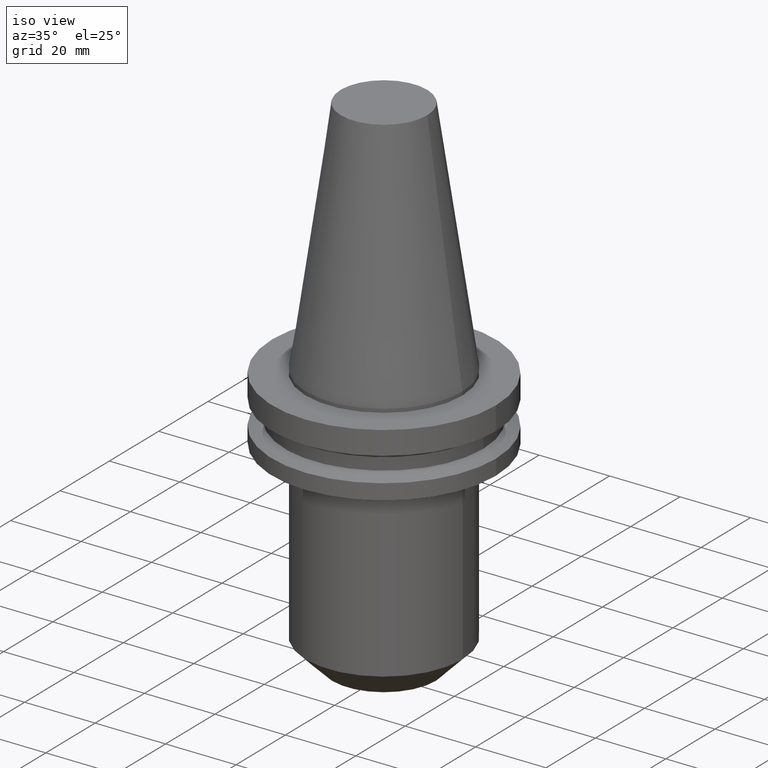
[diagram: clean part render]
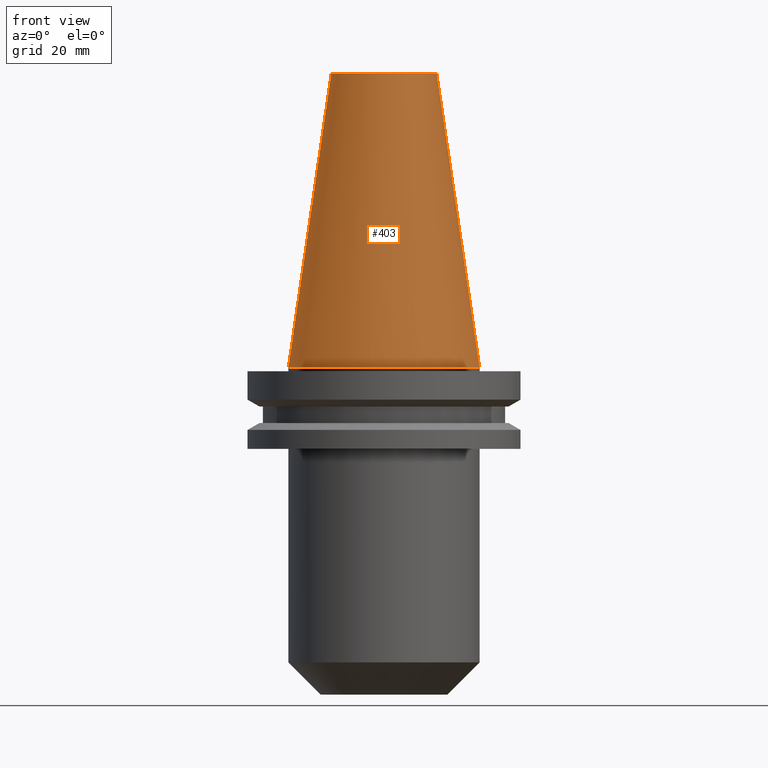
[diagram: tour spotlight — one face highlighted and labeled with its STEP entity id]
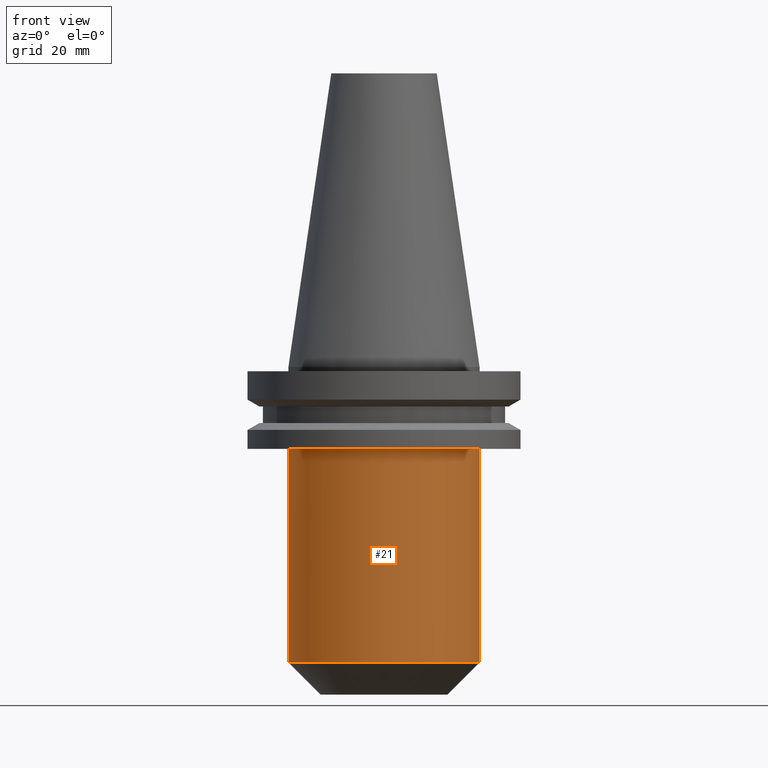
[diagram: tour spotlight — one face highlighted and labeled with its STEP entity id]
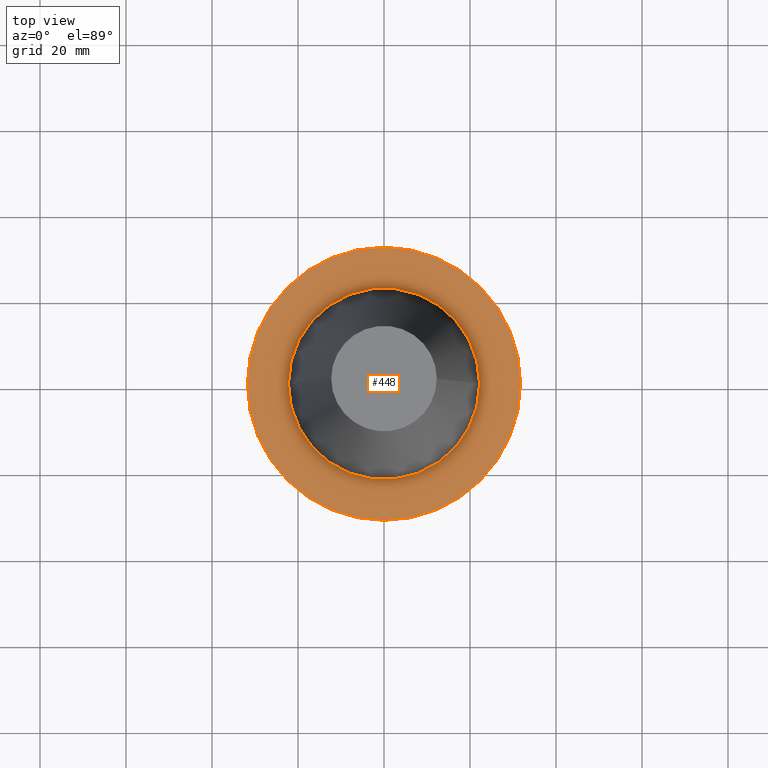
[diagram: tour spotlight — one face highlighted and labeled with its STEP entity id]
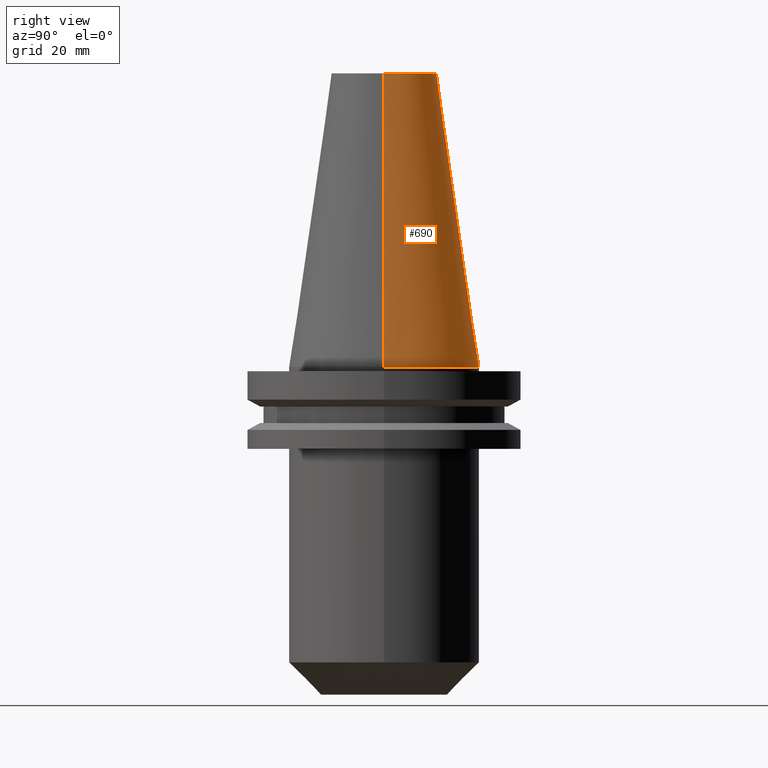
[diagram: tour spotlight — one face highlighted and labeled with its STEP entity id]
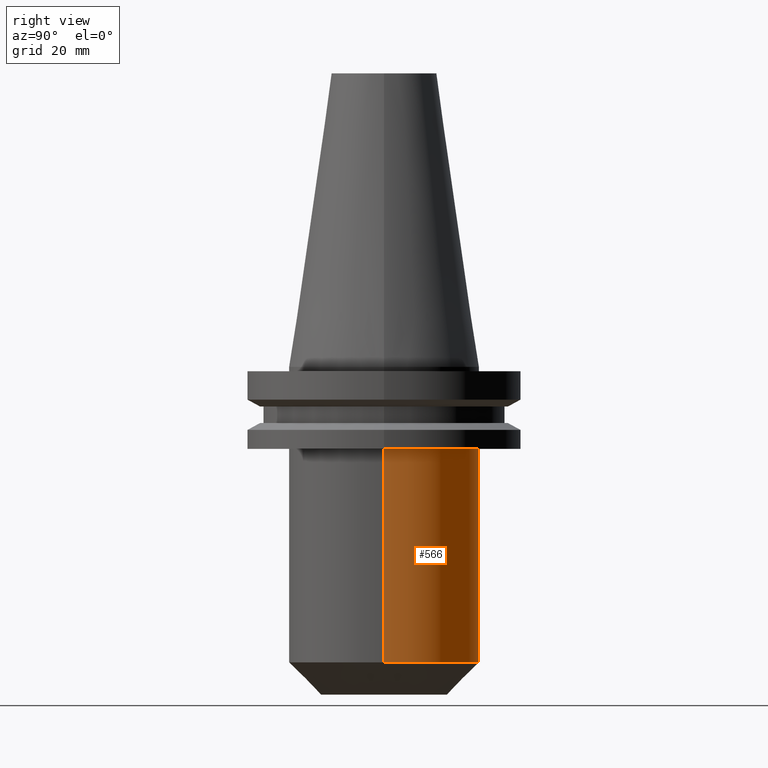
[diagram: tour spotlight — one face highlighted and labeled with its STEP entity id]
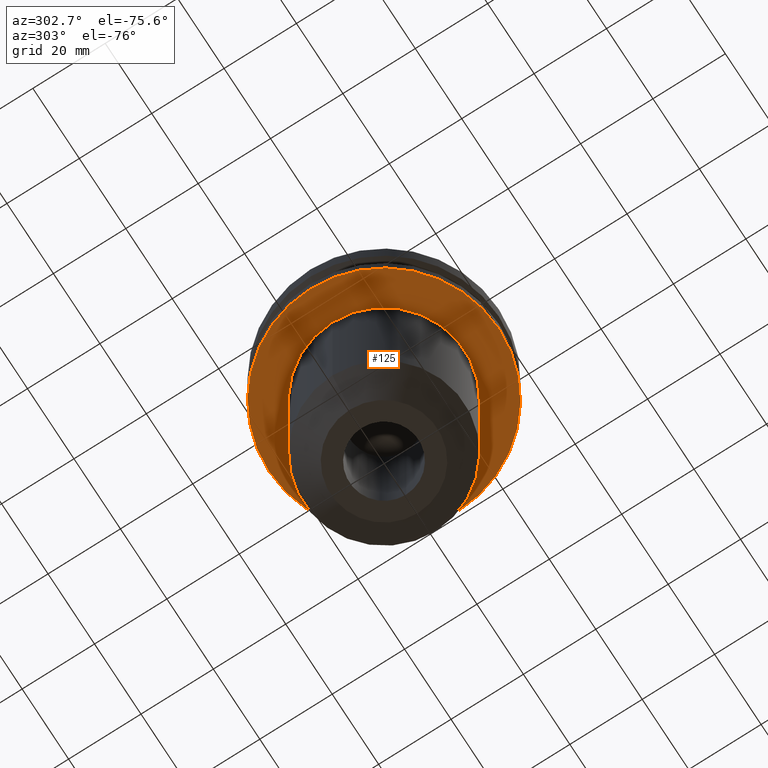
[diagram: tour spotlight — one face highlighted and labeled with its STEP entity id]
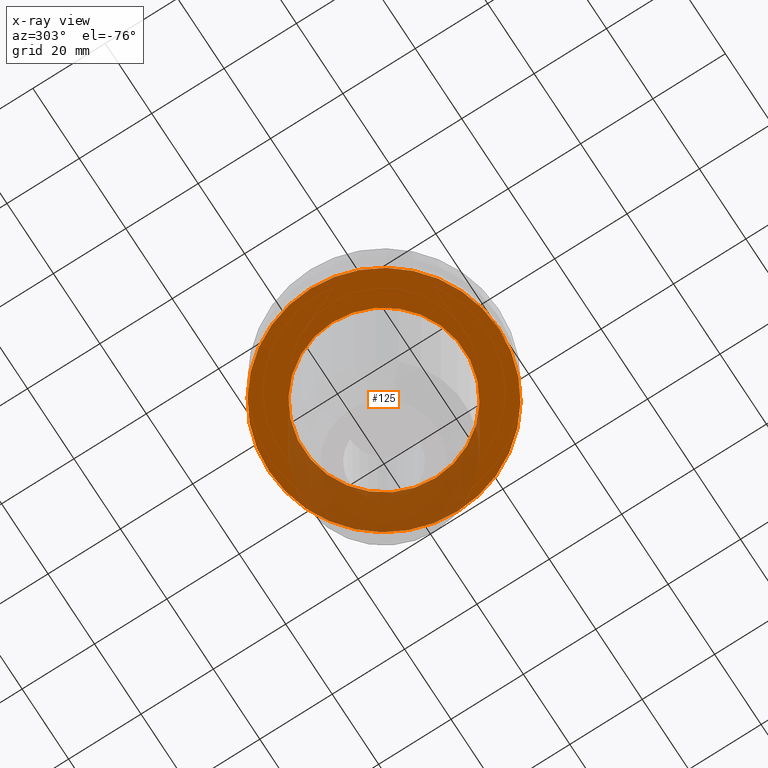
[diagram: x-ray of the same camera — body ghosted, this tour face saturated]
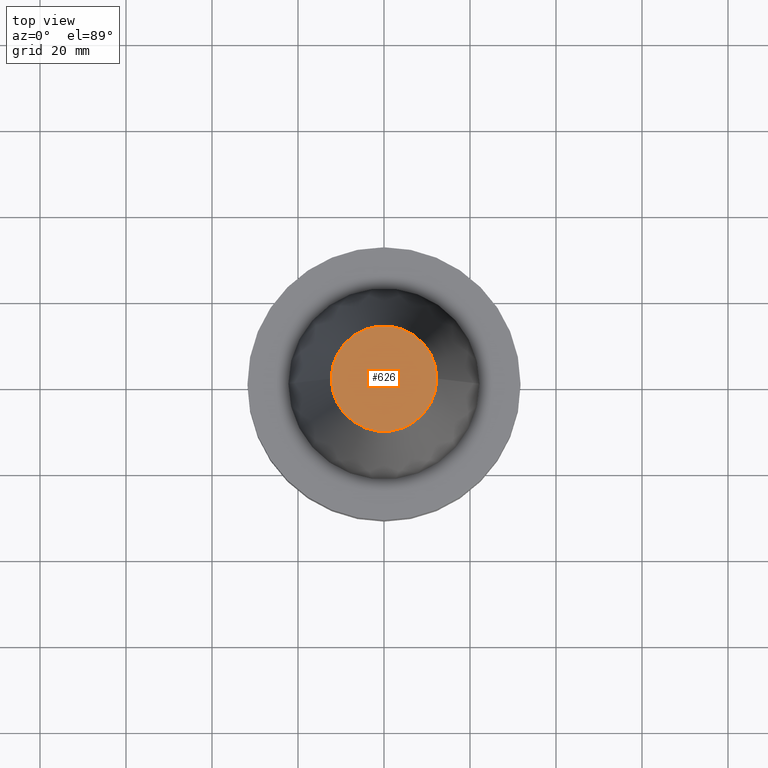
[diagram: tour spotlight — one face highlighted and labeled with its STEP entity id]
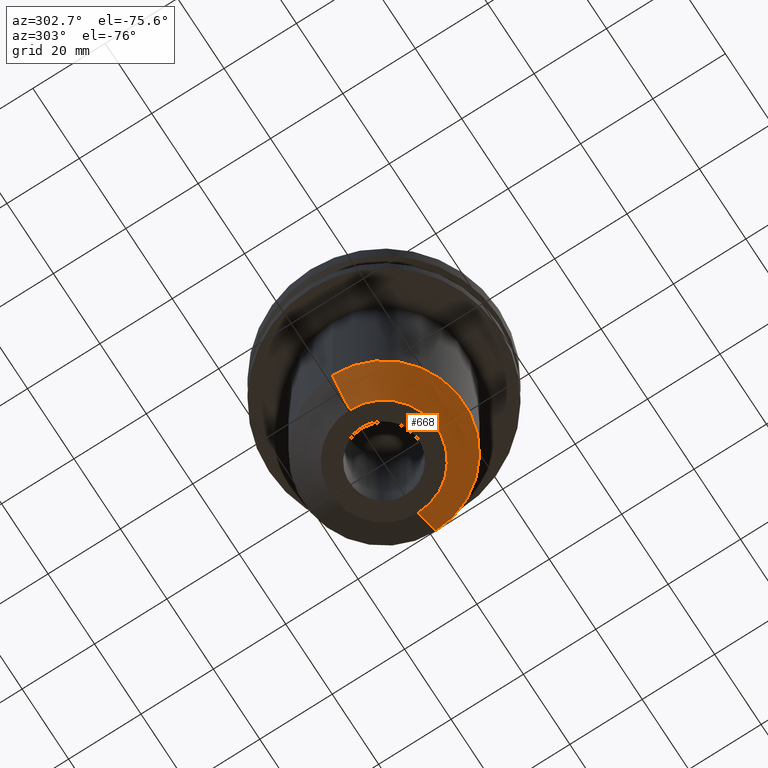
[diagram: tour spotlight — one face highlighted and labeled with its STEP entity id]
A machine part: a face-by-face anatomy tour. The part has 27 B-rep faces; the first image is the clean iso view, then the 8 largest visible faces are spotlighted one at a time (largest first), each with its STEP entity span.

Face 1 — front view, entity #403. In plain terms, the highlighted conical surface has half-angle 8.297 deg.
Definition (entity closure, byte-faithful):
#8 = VECTOR ( 'NONE', #361, 999.9999999999998863 ) ;
#9 = CARTESIAN_POINT ( 'NONE',  ( 0.000000000000000000, 0.000000000000000000, 68.25000000000000000 ) ) ;
#30 = EDGE_CURVE ( 'NONE', #718, #769, #304, .T. ) ;
#49 = DIRECTION ( 'NONE',  ( 0.000000000000000000, 0.000000000000000000, -1.000000000000000000 ) ) ;
#66 = VERTEX_POINT ( 'NONE', #443 ) ;
#99 = VERTEX_POINT ( 'NONE', #322 ) ;
#142 = ORIENTED_EDGE ( 'NONE', *, *, #30, .T. ) ;
#188 = EDGE_CURVE ( 'NONE', #99, #718, #244, .T. ) ;
#202 = CARTESIAN_POINT ( 'NONE',  ( 0.000000000000000000, 0.000000000000000000, 0.000000000000000000 ) ) ;
#239 = VECTOR ( 'NONE', #750, 999.9999999999998863 ) ;
#244 = LINE ( 'NONE', #657, #8 ) ;
#304 = CIRCLE ( 'NONE', #520, 22.22500000000000142 ) ;
#322 = CARTESIAN_POINT ( 'NONE',  ( -12.27178102086201150, 0.000000000000000000, 68.25000000000000000 ) ) ;
#349 = DIRECTION ( 'NONE',  ( -1.000000000000000000, 0.000000000000000000, 0.000000000000000000 ) ) ;
#361 = DIRECTION ( 'NONE',  ( -0.1443082272672999711, 0.000000000000000000, -0.9895327864921755756 ) ) ;
#377 = DIRECTION ( 'NONE',  ( 1.000000000000000000, 0.000000000000000000, 0.000000000000000000 ) ) ;
#388 = ORIENTED_EDGE ( 'NONE', *, *, #594, .F. ) ;
#399 = CARTESIAN_POINT ( 'NONE',  ( -22.22500000000000142, 0.000000000000000000, 0.000000000000000000 ) ) ;
#403 = ADVANCED_FACE ( 'NONE', ( #415 ), #458, .T. ) ;
#415 = FACE_OUTER_BOUND ( 'NONE', #746, .T. ) ;
#443 = CARTESIAN_POINT ( 'NONE',  ( 12.27178102086201150, 2.112318622904291439E-15, 68.25000000000000000 ) ) ;
#446 = ORIENTED_EDGE ( 'NONE', *, *, #188, .T. ) ;
#458 = CONICAL_SURFACE ( 'NONE', #554, 22.22500000000000142, 0.1448138465474119174 ) ;
#472 = CARTESIAN_POINT ( 'NONE',  ( 0.000000000000000000, 0.000000000000000000, 0.000000000000000000 ) ) ;
#498 = DIRECTION ( 'NONE',  ( -0.000000000000000000, -0.000000000000000000, 1.000000000000000000 ) ) ;
#506 = LINE ( 'NONE', #637, #239 ) ;
#509 = CIRCLE ( 'NONE', #645, 12.27178102086201150 ) ;
#520 = AXIS2_PLACEMENT_3D ( 'NONE', #202, #498, #377 ) ;
#554 = AXIS2_PLACEMENT_3D ( 'NONE', #472, #49, #349 ) ;
#589 = CARTESIAN_POINT ( 'NONE',  ( 22.22500000000000142, 2.721777511104992849E-15, 0.000000000000000000 ) ) ;
#594 = EDGE_CURVE ( 'NONE', #99, #66, #509, .T. ) ;
#623 = DIRECTION ( 'NONE',  ( 1.000000000000000000, 0.000000000000000000, 0.000000000000000000 ) ) ;
#637 = CARTESIAN_POINT ( 'NONE',  ( 22.22500000000000142, 2.721777511104992849E-15, 0.000000000000000000 ) ) ;
#645 = AXIS2_PLACEMENT_3D ( 'NONE', #9, #669, #623 ) ;
#657 = CARTESIAN_POINT ( 'NONE',  ( -22.22500000000000142, 0.000000000000000000, 0.000000000000000000 ) ) ;
#669 = DIRECTION ( 'NONE',  ( -0.000000000000000000, -0.000000000000000000, 1.000000000000000000 ) ) ;
#717 = EDGE_CURVE ( 'NONE', #66, #769, #506, .T. ) ;
#718 = VERTEX_POINT ( 'NONE', #399 ) ;
#743 = ORIENTED_EDGE ( 'NONE', *, *, #717, .F. ) ;
#746 = EDGE_LOOP ( 'NONE', ( #743, #388, #446, #142 ) ) ;
#750 = DIRECTION ( 'NONE',  ( 0.1443082272672999711, 1.767266086135276757E-17, -0.9895327864921755756 ) ) ;
#769 = VERTEX_POINT ( 'NONE', #589 ) ;

Face 2 — front view, entity #21. In plain terms, the highlighted cylindrical surface (partial cylindrical patch) has radius 22.225 mm, axis along (-0, -0, 1).
Definition (entity closure, byte-faithful):
#21 = ADVANCED_FACE ( 'NONE', ( #632 ), #390, .T. ) ;
#23 = ORIENTED_EDGE ( 'NONE', *, *, #162, .F. ) ;
#26 = ORIENTED_EDGE ( 'NONE', *, *, #541, .T. ) ;
#29 = CARTESIAN_POINT ( 'NONE',  ( 22.22500000000000142, 0.000000000000000000, -19.04999999999999716 ) ) ;
#35 = CARTESIAN_POINT ( 'NONE',  ( 0.000000000000000000, 0.000000000000000000, 68.25000000000000000 ) ) ;
#44 = EDGE_CURVE ( 'NONE', #107, #311, #450, .T. ) ;
#46 = VERTEX_POINT ( 'NONE', #29 ) ;
#82 = VECTOR ( 'NONE', #673, 1000.000000000000000 ) ;
#107 = VERTEX_POINT ( 'NONE', #739 ) ;
#124 = ORIENTED_EDGE ( 'NONE', *, *, #519, .T. ) ;
#159 = ORIENTED_EDGE ( 'NONE', *, *, #44, .F. ) ;
#162 = EDGE_CURVE ( 'NONE', #311, #46, #241, .T. ) ;
#208 = DIRECTION ( 'NONE',  ( -0.000000000000000000, -0.000000000000000000, 1.000000000000000000 ) ) ;
#241 = CIRCLE ( 'NONE', #579, 22.22500000000000142 ) ;
#266 = DIRECTION ( 'NONE',  ( 1.000000000000000000, 0.000000000000000000, 0.000000000000000000 ) ) ;
#270 = CARTESIAN_POINT ( 'NONE',  ( 0.000000000000000000, 0.000000000000000000, -19.04999999999999716 ) ) ;
#272 = CARTESIAN_POINT ( 'NONE',  ( 22.22500000000000142, 0.000000000000000000, -68.70000000000001705 ) ) ;
#311 = VERTEX_POINT ( 'NONE', #542 ) ;
#325 = CARTESIAN_POINT ( 'NONE',  ( -22.22500000000000142, 2.721777511104992849E-15, 68.25000000000000000 ) ) ;
#337 = VERTEX_POINT ( 'NONE', #272 ) ;
#341 = AXIS2_PLACEMENT_3D ( 'NONE', #35, #208, #266 ) ;
#390 = CYLINDRICAL_SURFACE ( 'NONE', #341, 22.22500000000000142 ) ;
#414 = AXIS2_PLACEMENT_3D ( 'NONE', #604, #487, #420 ) ;
#420 = DIRECTION ( 'NONE',  ( 1.000000000000000000, 0.000000000000000000, 0.000000000000000000 ) ) ;
#450 = LINE ( 'NONE', #325, #647 ) ;
#457 = DIRECTION ( 'NONE',  ( 1.000000000000000000, 0.000000000000000000, 0.000000000000000000 ) ) ;
#483 = LINE ( 'NONE', #490, #82 ) ;
#487 = DIRECTION ( 'NONE',  ( -0.000000000000000000, -0.000000000000000000, 1.000000000000000000 ) ) ;
#490 = CARTESIAN_POINT ( 'NONE',  ( 22.22500000000000142, 0.000000000000000000, 68.25000000000000000 ) ) ;
#516 = DIRECTION ( 'NONE',  ( -0.000000000000000000, -0.000000000000000000, 1.000000000000000000 ) ) ;
#519 = EDGE_CURVE ( 'NONE', #107, #337, #522, .T. ) ;
#522 = CIRCLE ( 'NONE', #414, 22.22500000000000142 ) ;
#541 = EDGE_CURVE ( 'NONE', #337, #46, #483, .T. ) ;
#542 = CARTESIAN_POINT ( 'NONE',  ( -22.22500000000000142, 2.721777511104992849E-15, -19.04999999999999716 ) ) ;
#551 = EDGE_LOOP ( 'NONE', ( #159, #124, #26, #23 ) ) ;
#579 = AXIS2_PLACEMENT_3D ( 'NONE', #270, #516, #457 ) ;
#604 = CARTESIAN_POINT ( 'NONE',  ( 0.000000000000000000, 0.000000000000000000, -68.70000000000001705 ) ) ;
#632 = FACE_OUTER_BOUND ( 'NONE', #551, .T. ) ;
#635 = DIRECTION ( 'NONE',  ( -0.000000000000000000, -0.000000000000000000, 1.000000000000000000 ) ) ;
#647 = VECTOR ( 'NONE', #635, 1000.000000000000000 ) ;
#673 = DIRECTION ( 'NONE',  ( -0.000000000000000000, -0.000000000000000000, 1.000000000000000000 ) ) ;
#739 = CARTESIAN_POINT ( 'NONE',  ( -22.22500000000000142, 2.721777511104992849E-15, -68.70000000000001705 ) ) ;

Face 3 — top view, entity #448. In plain terms, the highlighted planar face has unit normal (0, 0, -1).
Definition (entity closure, byte-faithful):
#1 = CARTESIAN_POINT ( 'NONE',  ( -31.75000000000000000, 3.888253587292846476E-15, -1.000000000000000888 ) ) ;
#55 = AXIS2_PLACEMENT_3D ( 'NONE', #83, #247, #79 ) ;
#57 = AXIS2_PLACEMENT_3D ( 'NONE', #515, #455, #155 ) ;
#72 = CIRCLE ( 'NONE', #57, 31.75000000000000000 ) ;
#79 = DIRECTION ( 'NONE',  ( -1.000000000000000000, 0.000000000000000000, -0.000000000000000000 ) ) ;
#80 = CARTESIAN_POINT ( 'NONE',  ( 22.22500000000000142, 0.000000000000000000, -1.000000000000000888 ) ) ;
#83 = CARTESIAN_POINT ( 'NONE',  ( 0.000000000000000000, 31.75000000000000000, -0.9999999999999995559 ) ) ;
#110 = FACE_BOUND ( 'NONE', #218, .T. ) ;
#115 = VERTEX_POINT ( 'NONE', #80 ) ;
#118 = CIRCLE ( 'NONE', #662, 22.22500000000000142 ) ;
#119 = VERTEX_POINT ( 'NONE', #691 ) ;
#135 = CARTESIAN_POINT ( 'NONE',  ( 0.000000000000000000, 0.000000000000000000, -1.000000000000000888 ) ) ;
#137 = EDGE_CURVE ( 'NONE', #492, #221, #494, .T. ) ;
#155 = DIRECTION ( 'NONE',  ( 1.000000000000000000, 0.000000000000000000, 0.000000000000000000 ) ) ;
#156 = DIRECTION ( 'NONE',  ( -0.000000000000000000, -0.000000000000000000, 1.000000000000000000 ) ) ;
#194 = DIRECTION ( 'NONE',  ( 1.000000000000000000, 0.000000000000000000, 0.000000000000000000 ) ) ;
#218 = EDGE_LOOP ( 'NONE', ( #348, #731 ) ) ;
#221 = VERTEX_POINT ( 'NONE', #1 ) ;
#229 = FACE_OUTER_BOUND ( 'NONE', #345, .T. ) ;
#245 = ORIENTED_EDGE ( 'NONE', *, *, #137, .T. ) ;
#247 = DIRECTION ( 'NONE',  ( 0.000000000000000000, 0.000000000000000000, -1.000000000000000000 ) ) ;
#259 = CARTESIAN_POINT ( 'NONE',  ( 0.000000000000000000, 0.000000000000000000, -1.000000000000000888 ) ) ;
#302 = CIRCLE ( 'NONE', #329, 22.22500000000000142 ) ;
#307 = PLANE ( 'NONE',  #55 ) ;
#329 = AXIS2_PLACEMENT_3D ( 'NONE', #135, #428, #194 ) ;
#345 = EDGE_LOOP ( 'NONE', ( #245, #411 ) ) ;
#348 = ORIENTED_EDGE ( 'NONE', *, *, #517, .F. ) ;
#396 = DIRECTION ( 'NONE',  ( 1.000000000000000000, 0.000000000000000000, 0.000000000000000000 ) ) ;
#411 = ORIENTED_EDGE ( 'NONE', *, *, #660, .T. ) ;
#428 = DIRECTION ( 'NONE',  ( -0.000000000000000000, -0.000000000000000000, 1.000000000000000000 ) ) ;
#448 = ADVANCED_FACE ( 'NONE', ( #110, #229 ), #307, .F. ) ;
#455 = DIRECTION ( 'NONE',  ( -0.000000000000000000, -0.000000000000000000, 1.000000000000000000 ) ) ;
#467 = CARTESIAN_POINT ( 'NONE',  ( 0.000000000000000000, 0.000000000000000000, -1.000000000000000888 ) ) ;
#492 = VERTEX_POINT ( 'NONE', #559 ) ;
#494 = CIRCLE ( 'NONE', #583, 31.75000000000000000 ) ;
#515 = CARTESIAN_POINT ( 'NONE',  ( 0.000000000000000000, 0.000000000000000000, -1.000000000000000888 ) ) ;
#517 = EDGE_CURVE ( 'NONE', #115, #119, #302, .T. ) ;
#536 = DIRECTION ( 'NONE',  ( 1.000000000000000000, 0.000000000000000000, 0.000000000000000000 ) ) ;
#559 = CARTESIAN_POINT ( 'NONE',  ( 31.75000000000000000, 0.000000000000000000, -1.000000000000000888 ) ) ;
#583 = AXIS2_PLACEMENT_3D ( 'NONE', #259, #156, #396 ) ;
#660 = EDGE_CURVE ( 'NONE', #221, #492, #72, .T. ) ;
#662 = AXIS2_PLACEMENT_3D ( 'NONE', #467, #719, #536 ) ;
#691 = CARTESIAN_POINT ( 'NONE',  ( -22.22500000000000142, 2.721777511104992849E-15, -1.000000000000000888 ) ) ;
#719 = DIRECTION ( 'NONE',  ( -0.000000000000000000, -0.000000000000000000, 1.000000000000000000 ) ) ;
#731 = ORIENTED_EDGE ( 'NONE', *, *, #764, .F. ) ;
#764 = EDGE_CURVE ( 'NONE', #119, #115, #118, .T. ) ;

Face 4 — right view, entity #690. In plain terms, the highlighted conical surface has half-angle 8.297 deg.
Definition (entity closure, byte-faithful):
#7 = AXIS2_PLACEMENT_3D ( 'NONE', #759, #217, #95 ) ;
#8 = VECTOR ( 'NONE', #361, 999.9999999999998863 ) ;
#66 = VERTEX_POINT ( 'NONE', #443 ) ;
#95 = DIRECTION ( 'NONE',  ( -1.000000000000000000, 0.000000000000000000, 0.000000000000000000 ) ) ;
#99 = VERTEX_POINT ( 'NONE', #322 ) ;
#120 = EDGE_CURVE ( 'NONE', #66, #99, #174, .T. ) ;
#153 = DIRECTION ( 'NONE',  ( -0.000000000000000000, -0.000000000000000000, 1.000000000000000000 ) ) ;
#158 = DIRECTION ( 'NONE',  ( 1.000000000000000000, 0.000000000000000000, 0.000000000000000000 ) ) ;
#174 = CIRCLE ( 'NONE', #251, 12.27178102086201150 ) ;
#188 = EDGE_CURVE ( 'NONE', #99, #718, #244, .T. ) ;
#195 = DIRECTION ( 'NONE',  ( 1.000000000000000000, 0.000000000000000000, 0.000000000000000000 ) ) ;
#217 = DIRECTION ( 'NONE',  ( 0.000000000000000000, 0.000000000000000000, -1.000000000000000000 ) ) ;
#239 = VECTOR ( 'NONE', #750, 999.9999999999998863 ) ;
#244 = LINE ( 'NONE', #657, #8 ) ;
#251 = AXIS2_PLACEMENT_3D ( 'NONE', #255, #153, #195 ) ;
#255 = CARTESIAN_POINT ( 'NONE',  ( 0.000000000000000000, 0.000000000000000000, 68.25000000000000000 ) ) ;
#260 = FACE_OUTER_BOUND ( 'NONE', #468, .T. ) ;
#316 = CONICAL_SURFACE ( 'NONE', #7, 22.22500000000000142, 0.1448138465474119174 ) ;
#322 = CARTESIAN_POINT ( 'NONE',  ( -12.27178102086201150, 0.000000000000000000, 68.25000000000000000 ) ) ;
#361 = DIRECTION ( 'NONE',  ( -0.1443082272672999711, 0.000000000000000000, -0.9895327864921755756 ) ) ;
#399 = CARTESIAN_POINT ( 'NONE',  ( -22.22500000000000142, 0.000000000000000000, 0.000000000000000000 ) ) ;
#443 = CARTESIAN_POINT ( 'NONE',  ( 12.27178102086201150, 2.112318622904291439E-15, 68.25000000000000000 ) ) ;
#462 = CARTESIAN_POINT ( 'NONE',  ( 0.000000000000000000, 0.000000000000000000, 0.000000000000000000 ) ) ;
#468 = EDGE_LOOP ( 'NONE', ( #489, #671, #734, #543 ) ) ;
#489 = ORIENTED_EDGE ( 'NONE', *, *, #120, .F. ) ;
#506 = LINE ( 'NONE', #637, #239 ) ;
#543 = ORIENTED_EDGE ( 'NONE', *, *, #188, .F. ) ;
#568 = DIRECTION ( 'NONE',  ( -0.000000000000000000, -0.000000000000000000, 1.000000000000000000 ) ) ;
#581 = AXIS2_PLACEMENT_3D ( 'NONE', #462, #568, #158 ) ;
#589 = CARTESIAN_POINT ( 'NONE',  ( 22.22500000000000142, 2.721777511104992849E-15, 0.000000000000000000 ) ) ;
#610 = CIRCLE ( 'NONE', #581, 22.22500000000000142 ) ;
#637 = CARTESIAN_POINT ( 'NONE',  ( 22.22500000000000142, 2.721777511104992849E-15, 0.000000000000000000 ) ) ;
#657 = CARTESIAN_POINT ( 'NONE',  ( -22.22500000000000142, 0.000000000000000000, 0.000000000000000000 ) ) ;
#671 = ORIENTED_EDGE ( 'NONE', *, *, #717, .T. ) ;
#690 = ADVANCED_FACE ( 'NONE', ( #260 ), #316, .T. ) ;
#705 = EDGE_CURVE ( 'NONE', #769, #718, #610, .T. ) ;
#717 = EDGE_CURVE ( 'NONE', #66, #769, #506, .T. ) ;
#718 = VERTEX_POINT ( 'NONE', #399 ) ;
#734 = ORIENTED_EDGE ( 'NONE', *, *, #705, .T. ) ;
#750 = DIRECTION ( 'NONE',  ( 0.1443082272672999711, 1.767266086135276757E-17, -0.9895327864921755756 ) ) ;
#759 = CARTESIAN_POINT ( 'NONE',  ( 0.000000000000000000, 0.000000000000000000, 0.000000000000000000 ) ) ;
#769 = VERTEX_POINT ( 'NONE', #589 ) ;

Face 5 — right view, entity #566. In plain terms, the highlighted cylindrical surface (partial cylindrical patch) has radius 22.225 mm, axis along (-0, -0, 1).
Definition (entity closure, byte-faithful):
#12 = EDGE_CURVE ( 'NONE', #337, #107, #681, .T. ) ;
#29 = CARTESIAN_POINT ( 'NONE',  ( 22.22500000000000142, 0.000000000000000000, -19.04999999999999716 ) ) ;
#44 = EDGE_CURVE ( 'NONE', #107, #311, #450, .T. ) ;
#46 = VERTEX_POINT ( 'NONE', #29 ) ;
#67 = CYLINDRICAL_SURFACE ( 'NONE', #555, 22.22500000000000142 ) ;
#82 = VECTOR ( 'NONE', #673, 1000.000000000000000 ) ;
#85 = EDGE_CURVE ( 'NONE', #46, #311, #441, .T. ) ;
#87 = CARTESIAN_POINT ( 'NONE',  ( 0.000000000000000000, 0.000000000000000000, -19.04999999999999716 ) ) ;
#107 = VERTEX_POINT ( 'NONE', #739 ) ;
#132 = ORIENTED_EDGE ( 'NONE', *, *, #44, .T. ) ;
#139 = DIRECTION ( 'NONE',  ( 1.000000000000000000, 0.000000000000000000, 0.000000000000000000 ) ) ;
#243 = DIRECTION ( 'NONE',  ( 1.000000000000000000, 0.000000000000000000, 0.000000000000000000 ) ) ;
#272 = CARTESIAN_POINT ( 'NONE',  ( 22.22500000000000142, 0.000000000000000000, -68.70000000000001705 ) ) ;
#311 = VERTEX_POINT ( 'NONE', #542 ) ;
#325 = CARTESIAN_POINT ( 'NONE',  ( -22.22500000000000142, 2.721777511104992849E-15, 68.25000000000000000 ) ) ;
#331 = DIRECTION ( 'NONE',  ( 1.000000000000000000, 0.000000000000000000, 0.000000000000000000 ) ) ;
#337 = VERTEX_POINT ( 'NONE', #272 ) ;
#364 = FACE_OUTER_BOUND ( 'NONE', #513, .T. ) ;
#412 = AXIS2_PLACEMENT_3D ( 'NONE', #87, #678, #139 ) ;
#424 = DIRECTION ( 'NONE',  ( -0.000000000000000000, -0.000000000000000000, 1.000000000000000000 ) ) ;
#441 = CIRCLE ( 'NONE', #412, 22.22500000000000142 ) ;
#450 = LINE ( 'NONE', #325, #647 ) ;
#460 = ORIENTED_EDGE ( 'NONE', *, *, #541, .F. ) ;
#483 = LINE ( 'NONE', #490, #82 ) ;
#490 = CARTESIAN_POINT ( 'NONE',  ( 22.22500000000000142, 0.000000000000000000, 68.25000000000000000 ) ) ;
#508 = CARTESIAN_POINT ( 'NONE',  ( 0.000000000000000000, 0.000000000000000000, -68.70000000000001705 ) ) ;
#513 = EDGE_LOOP ( 'NONE', ( #658, #132, #592, #460 ) ) ;
#541 = EDGE_CURVE ( 'NONE', #337, #46, #483, .T. ) ;
#542 = CARTESIAN_POINT ( 'NONE',  ( -22.22500000000000142, 2.721777511104992849E-15, -19.04999999999999716 ) ) ;
#546 = CARTESIAN_POINT ( 'NONE',  ( 0.000000000000000000, 0.000000000000000000, 68.25000000000000000 ) ) ;
#555 = AXIS2_PLACEMENT_3D ( 'NONE', #546, #424, #243 ) ;
#566 = ADVANCED_FACE ( 'NONE', ( #364 ), #67, .T. ) ;
#592 = ORIENTED_EDGE ( 'NONE', *, *, #85, .F. ) ;
#593 = AXIS2_PLACEMENT_3D ( 'NONE', #508, #745, #331 ) ;
#635 = DIRECTION ( 'NONE',  ( -0.000000000000000000, -0.000000000000000000, 1.000000000000000000 ) ) ;
#647 = VECTOR ( 'NONE', #635, 1000.000000000000000 ) ;
#658 = ORIENTED_EDGE ( 'NONE', *, *, #12, .T. ) ;
#673 = DIRECTION ( 'NONE',  ( -0.000000000000000000, -0.000000000000000000, 1.000000000000000000 ) ) ;
#678 = DIRECTION ( 'NONE',  ( -0.000000000000000000, -0.000000000000000000, 1.000000000000000000 ) ) ;
#681 = CIRCLE ( 'NONE', #593, 22.22500000000000142 ) ;
#739 = CARTESIAN_POINT ( 'NONE',  ( -22.22500000000000142, 2.721777511104992849E-15, -68.70000000000001705 ) ) ;
#745 = DIRECTION ( 'NONE',  ( -0.000000000000000000, -0.000000000000000000, 1.000000000000000000 ) ) ;

Face 6 — auxiliary view, entity #125. An x-ray twin of the same camera follows (body ghosted, this face saturated) — the face is partly hidden behind the body. In plain terms, the highlighted planar face has unit normal (0, -0, 1).
Definition (entity closure, byte-faithful):
#14 = DIRECTION ( 'NONE',  ( -0.000000000000000000, -0.000000000000000000, 1.000000000000000000 ) ) ;
#25 = DIRECTION ( 'NONE',  ( 1.000000000000000000, 0.000000000000000000, 0.000000000000000000 ) ) ;
#29 = CARTESIAN_POINT ( 'NONE',  ( 22.22500000000000142, 0.000000000000000000, -19.04999999999999716 ) ) ;
#43 = AXIS2_PLACEMENT_3D ( 'NONE', #69, #14, #288 ) ;
#46 = VERTEX_POINT ( 'NONE', #29 ) ;
#48 = ORIENTED_EDGE ( 'NONE', *, *, #280, .F. ) ;
#51 = ORIENTED_EDGE ( 'NONE', *, *, #444, .F. ) ;
#69 = CARTESIAN_POINT ( 'NONE',  ( 0.000000000000000000, 0.000000000000000000, -19.04999999999999716 ) ) ;
#81 = CIRCLE ( 'NONE', #43, 31.74999999999999289 ) ;
#85 = EDGE_CURVE ( 'NONE', #46, #311, #441, .T. ) ;
#87 = CARTESIAN_POINT ( 'NONE',  ( 0.000000000000000000, 0.000000000000000000, -19.04999999999999716 ) ) ;
#116 = CIRCLE ( 'NONE', #392, 31.74999999999999289 ) ;
#125 = ADVANCED_FACE ( 'NONE', ( #434, #676 ), #315, .F. ) ;
#139 = DIRECTION ( 'NONE',  ( 1.000000000000000000, 0.000000000000000000, 0.000000000000000000 ) ) ;
#162 = EDGE_CURVE ( 'NONE', #311, #46, #241, .T. ) ;
#214 = ORIENTED_EDGE ( 'NONE', *, *, #162, .T. ) ;
#241 = CIRCLE ( 'NONE', #579, 22.22500000000000142 ) ;
#270 = CARTESIAN_POINT ( 'NONE',  ( 0.000000000000000000, 0.000000000000000000, -19.04999999999999716 ) ) ;
#279 = CARTESIAN_POINT ( 'NONE',  ( 0.000000000000000000, 0.000000000000000000, -19.04999999999999716 ) ) ;
#280 = EDGE_CURVE ( 'NONE', #397, #309, #81, .T. ) ;
#288 = DIRECTION ( 'NONE',  ( 1.000000000000000000, 0.000000000000000000, 0.000000000000000000 ) ) ;
#309 = VERTEX_POINT ( 'NONE', #478 ) ;
#311 = VERTEX_POINT ( 'NONE', #542 ) ;
#315 = PLANE ( 'NONE',  #391 ) ;
#384 = CARTESIAN_POINT ( 'NONE',  ( 0.000000000000000000, 31.74999999999999289, -19.04999999999999716 ) ) ;
#391 = AXIS2_PLACEMENT_3D ( 'NONE', #384, #561, #25 ) ;
#392 = AXIS2_PLACEMENT_3D ( 'NONE', #279, #650, #590 ) ;
#397 = VERTEX_POINT ( 'NONE', #711 ) ;
#412 = AXIS2_PLACEMENT_3D ( 'NONE', #87, #678, #139 ) ;
#434 = FACE_OUTER_BOUND ( 'NONE', #766, .T. ) ;
#441 = CIRCLE ( 'NONE', #412, 22.22500000000000142 ) ;
#444 = EDGE_CURVE ( 'NONE', #309, #397, #116, .T. ) ;
#457 = DIRECTION ( 'NONE',  ( 1.000000000000000000, 0.000000000000000000, 0.000000000000000000 ) ) ;
#478 = CARTESIAN_POINT ( 'NONE',  ( -31.74999999999999289, 3.888253587292845687E-15, -19.04999999999999716 ) ) ;
#516 = DIRECTION ( 'NONE',  ( -0.000000000000000000, -0.000000000000000000, 1.000000000000000000 ) ) ;
#542 = CARTESIAN_POINT ( 'NONE',  ( -22.22500000000000142, 2.721777511104992849E-15, -19.04999999999999716 ) ) ;
#561 = DIRECTION ( 'NONE',  ( 0.000000000000000000, -0.000000000000000000, 1.000000000000000000 ) ) ;
#579 = AXIS2_PLACEMENT_3D ( 'NONE', #270, #516, #457 ) ;
#587 = ORIENTED_EDGE ( 'NONE', *, *, #85, .T. ) ;
#590 = DIRECTION ( 'NONE',  ( 1.000000000000000000, 0.000000000000000000, 0.000000000000000000 ) ) ;
#650 = DIRECTION ( 'NONE',  ( -0.000000000000000000, -0.000000000000000000, 1.000000000000000000 ) ) ;
#676 = FACE_BOUND ( 'NONE', #709, .T. ) ;
#678 = DIRECTION ( 'NONE',  ( -0.000000000000000000, -0.000000000000000000, 1.000000000000000000 ) ) ;
#709 = EDGE_LOOP ( 'NONE', ( #587, #214 ) ) ;
#711 = CARTESIAN_POINT ( 'NONE',  ( 31.74999999999999289, 0.000000000000000000, -19.04999999999999716 ) ) ;
#766 = EDGE_LOOP ( 'NONE', ( #48, #51 ) ) ;

Face 7 — top view, entity #626. In plain terms, the highlighted planar face has unit normal (0, 0, -1).
Definition (entity closure, byte-faithful):
#9 = CARTESIAN_POINT ( 'NONE',  ( 0.000000000000000000, 0.000000000000000000, 68.25000000000000000 ) ) ;
#66 = VERTEX_POINT ( 'NONE', #443 ) ;
#88 = FACE_OUTER_BOUND ( 'NONE', #203, .T. ) ;
#99 = VERTEX_POINT ( 'NONE', #322 ) ;
#120 = EDGE_CURVE ( 'NONE', #66, #99, #174, .T. ) ;
#153 = DIRECTION ( 'NONE',  ( -0.000000000000000000, -0.000000000000000000, 1.000000000000000000 ) ) ;
#174 = CIRCLE ( 'NONE', #251, 12.27178102086201150 ) ;
#195 = DIRECTION ( 'NONE',  ( 1.000000000000000000, 0.000000000000000000, 0.000000000000000000 ) ) ;
#201 = DIRECTION ( 'NONE',  ( -1.000000000000000000, 0.000000000000000000, -0.000000000000000000 ) ) ;
#203 = EDGE_LOOP ( 'NONE', ( #531, #485 ) ) ;
#251 = AXIS2_PLACEMENT_3D ( 'NONE', #255, #153, #195 ) ;
#255 = CARTESIAN_POINT ( 'NONE',  ( 0.000000000000000000, 0.000000000000000000, 68.25000000000000000 ) ) ;
#322 = CARTESIAN_POINT ( 'NONE',  ( -12.27178102086201150, 0.000000000000000000, 68.25000000000000000 ) ) ;
#334 = DIRECTION ( 'NONE',  ( 0.000000000000000000, 0.000000000000000000, -1.000000000000000000 ) ) ;
#340 = AXIS2_PLACEMENT_3D ( 'NONE', #440, #334, #201 ) ;
#440 = CARTESIAN_POINT ( 'NONE',  ( 0.000000000000000000, 12.27178102086201150, 68.25000000000000000 ) ) ;
#443 = CARTESIAN_POINT ( 'NONE',  ( 12.27178102086201150, 2.112318622904291439E-15, 68.25000000000000000 ) ) ;
#449 = PLANE ( 'NONE',  #340 ) ;
#485 = ORIENTED_EDGE ( 'NONE', *, *, #120, .T. ) ;
#509 = CIRCLE ( 'NONE', #645, 12.27178102086201150 ) ;
#531 = ORIENTED_EDGE ( 'NONE', *, *, #594, .T. ) ;
#594 = EDGE_CURVE ( 'NONE', #99, #66, #509, .T. ) ;
#623 = DIRECTION ( 'NONE',  ( 1.000000000000000000, 0.000000000000000000, 0.000000000000000000 ) ) ;
#626 = ADVANCED_FACE ( 'NONE', ( #88 ), #449, .F. ) ;
#645 = AXIS2_PLACEMENT_3D ( 'NONE', #9, #669, #623 ) ;
#669 = DIRECTION ( 'NONE',  ( -0.000000000000000000, -0.000000000000000000, 1.000000000000000000 ) ) ;

Face 8 — auxiliary view, entity #668. In plain terms, the highlighted conical surface has half-angle 45 deg.
Definition (entity closure, byte-faithful):
#16 = CARTESIAN_POINT ( 'NONE',  ( 14.72499999999998366, 0.000000000000000000, -76.20000000000001705 ) ) ;
#34 = CARTESIAN_POINT ( 'NONE',  ( 0.000000000000000000, 0.000000000000000000, -76.20000000000001705 ) ) ;
#54 = CARTESIAN_POINT ( 'NONE',  ( 14.72499999999998366, 0.000000000000000000, -76.20000000000001705 ) ) ;
#107 = VERTEX_POINT ( 'NONE', #739 ) ;
#133 = CIRCLE ( 'NONE', #300, 14.72499999999998366 ) ;
#151 = FACE_OUTER_BOUND ( 'NONE', #373, .T. ) ;
#187 = ORIENTED_EDGE ( 'NONE', *, *, #519, .F. ) ;
#193 = AXIS2_PLACEMENT_3D ( 'NONE', #385, #502, #389 ) ;
#207 = DIRECTION ( 'NONE',  ( -0.7071067811865482389, 8.659560562354941486E-17, 0.7071067811865469066 ) ) ;
#272 = CARTESIAN_POINT ( 'NONE',  ( 22.22500000000000142, 0.000000000000000000, -68.70000000000001705 ) ) ;
#300 = AXIS2_PLACEMENT_3D ( 'NONE', #34, #512, #452 ) ;
#324 = CARTESIAN_POINT ( 'NONE',  ( -14.72499999999998366, 2.262534961424734071E-15, -76.20000000000001705 ) ) ;
#335 = EDGE_CURVE ( 'NONE', #712, #615, #133, .T. ) ;
#337 = VERTEX_POINT ( 'NONE', #272 ) ;
#343 = LINE ( 'NONE', #54, #353 ) ;
#353 = VECTOR ( 'NONE', #715, 999.9999999999998863 ) ;
#356 = CONICAL_SURFACE ( 'NONE', #193, 14.72499999999998366, 0.7853981633974491672 ) ;
#373 = EDGE_LOOP ( 'NONE', ( #514, #473, #667, #187 ) ) ;
#379 = EDGE_CURVE ( 'NONE', #615, #337, #343, .T. ) ;
#385 = CARTESIAN_POINT ( 'NONE',  ( 0.000000000000000000, 0.000000000000000000, -76.20000000000001705 ) ) ;
#389 = DIRECTION ( 'NONE',  ( 1.000000000000000000, 0.000000000000000000, 0.000000000000000000 ) ) ;
#414 = AXIS2_PLACEMENT_3D ( 'NONE', #604, #487, #420 ) ;
#420 = DIRECTION ( 'NONE',  ( 1.000000000000000000, 0.000000000000000000, 0.000000000000000000 ) ) ;
#451 = CARTESIAN_POINT ( 'NONE',  ( -14.72499999999998366, 1.803292411744475688E-15, -76.20000000000001705 ) ) ;
#452 = DIRECTION ( 'NONE',  ( 1.000000000000000000, 0.000000000000000000, 0.000000000000000000 ) ) ;
#461 = VECTOR ( 'NONE', #207, 999.9999999999998863 ) ;
#473 = ORIENTED_EDGE ( 'NONE', *, *, #335, .T. ) ;
#487 = DIRECTION ( 'NONE',  ( -0.000000000000000000, -0.000000000000000000, 1.000000000000000000 ) ) ;
#502 = DIRECTION ( 'NONE',  ( -0.000000000000000000, -0.000000000000000000, 1.000000000000000000 ) ) ;
#512 = DIRECTION ( 'NONE',  ( -0.000000000000000000, -0.000000000000000000, 1.000000000000000000 ) ) ;
#514 = ORIENTED_EDGE ( 'NONE', *, *, #636, .F. ) ;
#519 = EDGE_CURVE ( 'NONE', #107, #337, #522, .T. ) ;
#522 = CIRCLE ( 'NONE', #414, 22.22500000000000142 ) ;
#604 = CARTESIAN_POINT ( 'NONE',  ( 0.000000000000000000, 0.000000000000000000, -68.70000000000001705 ) ) ;
#615 = VERTEX_POINT ( 'NONE', #16 ) ;
#636 = EDGE_CURVE ( 'NONE', #712, #107, #699, .T. ) ;
#667 = ORIENTED_EDGE ( 'NONE', *, *, #379, .T. ) ;
#668 = ADVANCED_FACE ( 'NONE', ( #151 ), #356, .T. ) ;
#699 = LINE ( 'NONE', #451, #461 ) ;
#712 = VERTEX_POINT ( 'NONE', #324 ) ;
#715 = DIRECTION ( 'NONE',  ( 0.7071067811865482389, 0.000000000000000000, 0.7071067811865469066 ) ) ;
#739 = CARTESIAN_POINT ( 'NONE',  ( -22.22500000000000142, 2.721777511104992849E-15, -68.70000000000001705 ) ) ;